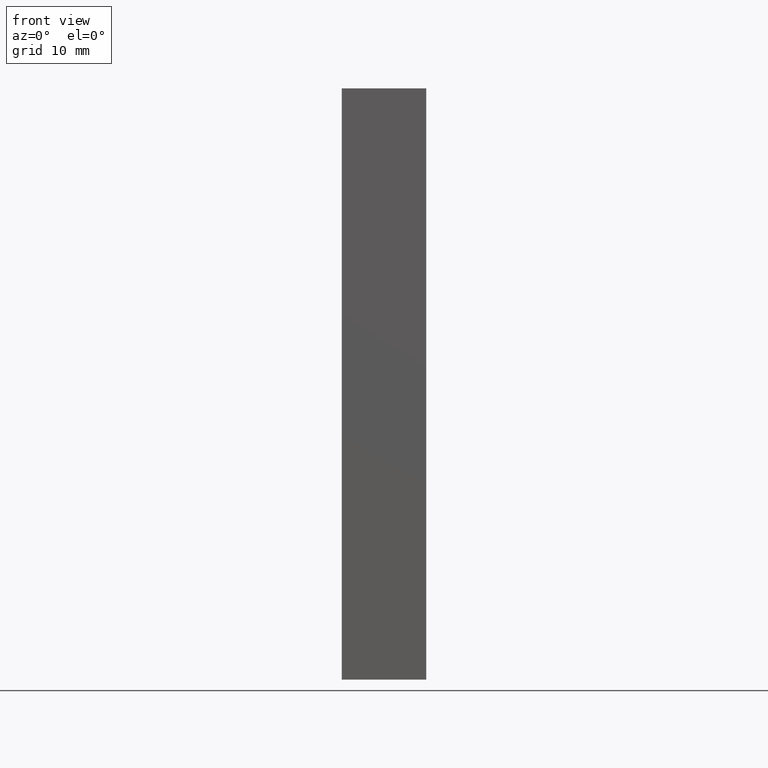
[diagram: clean part render]
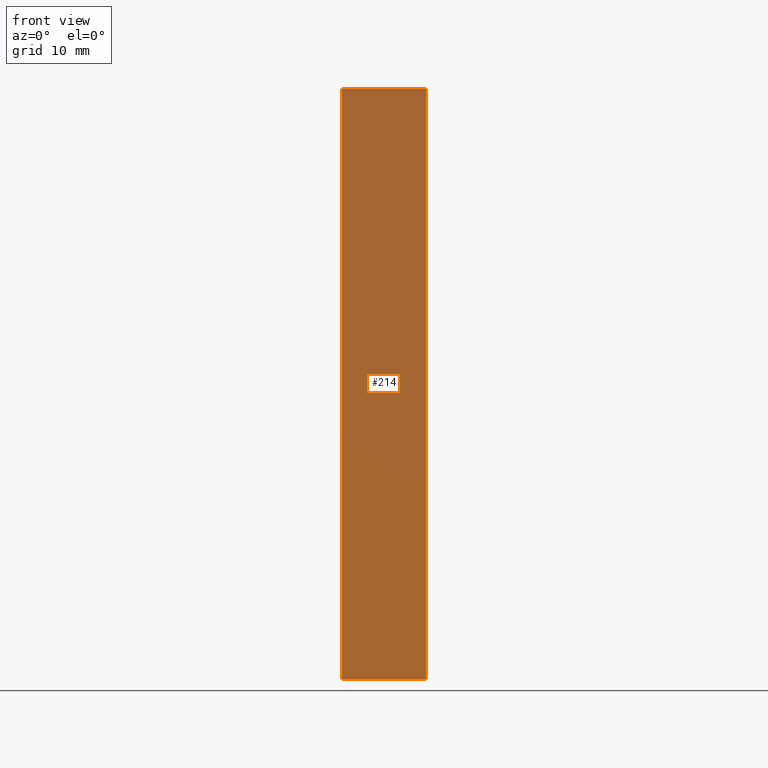
[diagram: same view with one face highlighted and labeled with its STEP entity id]
A machine part, front view. The second image highlights one B-rep face of the part: STEP entity #214.
In plain terms, the highlighted planar face has unit normal (0, -1, 0).
Its self-contained STEP definition (entity closure, byte-faithful):
#59=FACE_OUTER_BOUND('',#85,.T.);
#85=EDGE_LOOP('',(#190,#191,#192,#193));
#90=LINE('',#354,#102);
#93=LINE('',#359,#105);
#95=LINE('',#363,#107);
#97=LINE('',#366,#109);
#102=VECTOR('',#296,10.);
#105=VECTOR('',#301,10.);
#107=VECTOR('',#305,10.);
#109=VECTOR('',#309,10.);
#124=VERTEX_POINT('',#352);
#125=VERTEX_POINT('',#353);
#126=VERTEX_POINT('',#358);
#127=VERTEX_POINT('',#362);
#142=EDGE_CURVE('',#124,#125,#90,.T.);
#145=EDGE_CURVE('',#126,#124,#93,.T.);
#147=EDGE_CURVE('',#127,#126,#95,.T.);
#149=EDGE_CURVE('',#125,#127,#97,.T.);
#190=ORIENTED_EDGE('',*,*,#149,.F.);
#191=ORIENTED_EDGE('',*,*,#142,.F.);
#192=ORIENTED_EDGE('',*,*,#145,.F.);
#193=ORIENTED_EDGE('',*,*,#147,.F.);
#199=PLANE('',#247);
#214=ADVANCED_FACE('',(#59),#199,.T.);
#247=AXIS2_PLACEMENT_3D('',#367,#310,#311);
#296=DIRECTION('',(1.88341405963196E-16,0.,1.));
#301=DIRECTION('',(-1.,0.,0.));
#305=DIRECTION('',(-5.94762334620619E-17,0.,-1.));
#309=DIRECTION('',(1.,0.,0.));
#310=DIRECTION('center_axis',(0.,-1.,0.));
#311=DIRECTION('ref_axis',(0.,0.,-1.));
#352=CARTESIAN_POINT('',(-4.00000000000001,0.,-28.));
#353=CARTESIAN_POINT('',(-4.,0.,28.));
#354=CARTESIAN_POINT('',(-4.00000000000001,0.,-28.));
#358=CARTESIAN_POINT('',(4.,0.,-28.));
#359=CARTESIAN_POINT('',(4.,0.,-28.));
#362=CARTESIAN_POINT('',(4.,0.,28.));
#363=CARTESIAN_POINT('',(4.,0.,28.));
#366=CARTESIAN_POINT('',(-4.,0.,28.));
#367=CARTESIAN_POINT('Origin',(-2.60208521396521E-16,0.,-1.46757606067638E-14));